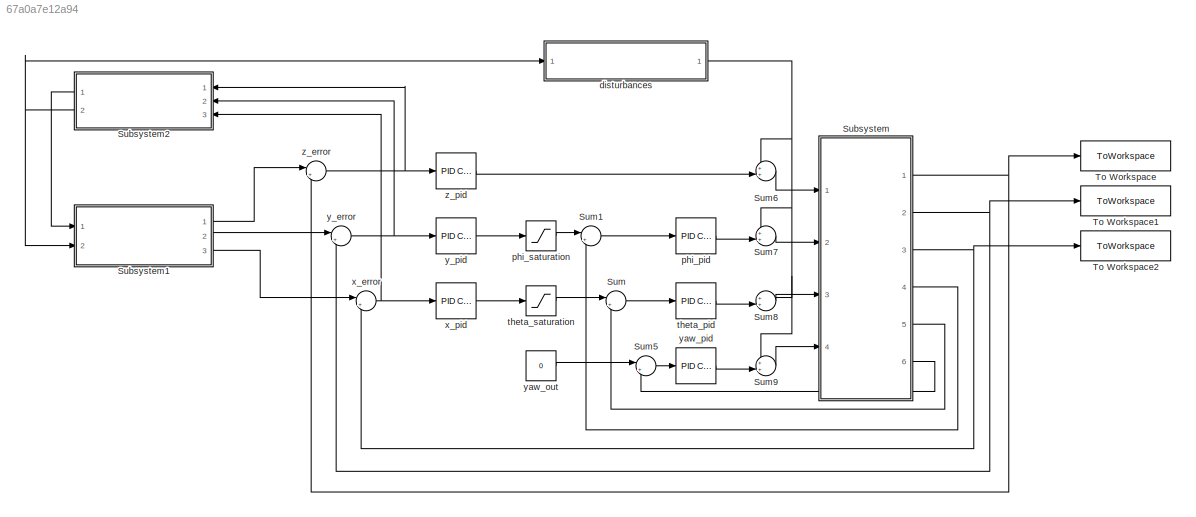
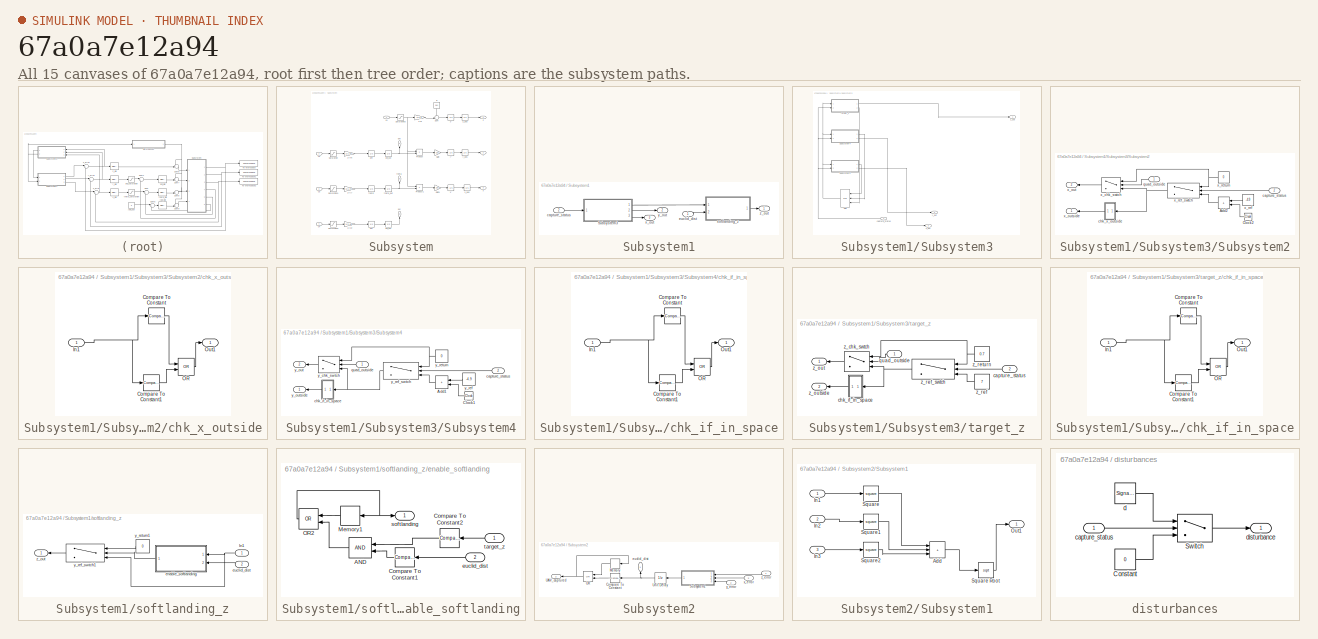
[diagram: thumbnail index - all 15 canvases of the model, root first then tree order]
MODEL slx_67a0a7e12a94
KIND model
CONFIG AbsTol = auto
CONFIG EnableMultiTasking = off
CONFIG FixedStep = auto
CONFIG MaxStep = auto
CONFIG MinStep = auto
CONFIG RelTol = 1e-3
CONFIG SampleTimeConstraint = Unconstrained
CONFIG SolverName = VariableStepAuto
CONFIG StartTime = 0.0
CONFIG StopTime = 40
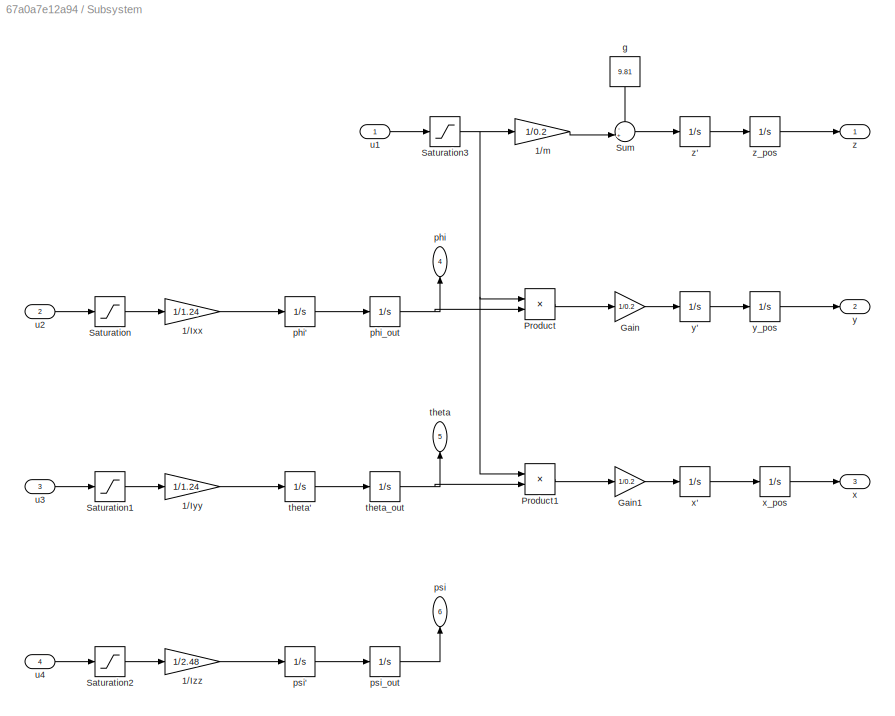
BLOCK [SubSystem] Subsystem
  Ports = [4, 6]
  RequestExecContextInheritance = off
BLOCK [Gain] Subsystem/1//Ixx
  Gain = 1/1.24
BLOCK [Gain] Subsystem/1//Iyy
  Gain = 1/1.24
BLOCK [Gain] Subsystem/1//Izz
  Gain = 1/2.48
BLOCK [Gain] Subsystem/1//m
  Gain = 1/0.2
BLOCK [Gain] Subsystem/Gain
  Gain = 1/0.2
BLOCK [Gain] Subsystem/Gain1
  Gain = 1/0.2
BLOCK [Product] Subsystem/Product
  Ports = [2, 1]
BLOCK [Product] Subsystem/Product1
  Ports = [2, 1]
BLOCK [Saturate] Subsystem/Saturation
  LowerLimit = -0.2
  UpperLimit = 0.2
BLOCK [Saturate] Subsystem/Saturation1
  LowerLimit = -0.2
  UpperLimit = 0.2
BLOCK [Saturate] Subsystem/Saturation2
  LowerLimit = -0.2
  UpperLimit = 0.2
BLOCK [Saturate] Subsystem/Saturation3
  LowerLimit = 0
  UpperLimit = 4
BLOCK [Sum] Subsystem/Sum
  Inputs = -+|
  Ports = [2, 1]
BLOCK [Constant] Subsystem/g
  NameLocation = left
  Value = 9.81
BLOCK [Outport] Subsystem/phi
  NameLocation = right
  Port = 4
BLOCK [Integrator] Subsystem/phi'
  Ports = [1, 1]
BLOCK [Integrator] Subsystem/phi_out
  Ports = [1, 1]
BLOCK [Outport] Subsystem/psi
  NameLocation = right
  Port = 6
BLOCK [Integrator] Subsystem/psi'
  Ports = [1, 1]
BLOCK [Integrator] Subsystem/psi_out
  Ports = [1, 1]
BLOCK [Outport] Subsystem/theta
  NameLocation = right
  Port = 5
BLOCK [Integrator] Subsystem/theta'
  Ports = [1, 1]
BLOCK [Integrator] Subsystem/theta_out
  Ports = [1, 1]
BLOCK [Inport] Subsystem/u1
BLOCK [Inport] Subsystem/u2
  Port = 2
BLOCK [Inport] Subsystem/u3
  Port = 3
BLOCK [Inport] Subsystem/u4
  Port = 4
BLOCK [Outport] Subsystem/x
  Port = 3
BLOCK [Integrator] Subsystem/x'
  Ports = [1, 1]
BLOCK [Integrator] Subsystem/x_pos
  Ports = [1, 1]
BLOCK [Outport] Subsystem/y
  Port = 2
BLOCK [Integrator] Subsystem/y'
  Ports = [1, 1]
BLOCK [Integrator] Subsystem/y_pos
  Ports = [1, 1]
BLOCK [Outport] Subsystem/z
BLOCK [Integrator] Subsystem/z'
  Ports = [1, 1]
BLOCK [Integrator] Subsystem/z_pos
  Ports = [1, 1]
BLOCK [SubSystem] Subsystem1
  Ports = [2, 3]
  RequestExecContextInheritance = off
BLOCK [SubSystem] Subsystem1/Subsystem3
  Ports = [1, 3]
  RequestExecContextInheritance = off
BLOCK [Logic] Subsystem1/Subsystem3/OR1
  AllPortsSameDT = off
  IconShape = distinctive
  Inputs = 3
  NameLocation = top
  Operator = OR
  OutDataTypeStr = boolean
  Ports = [3, 1]
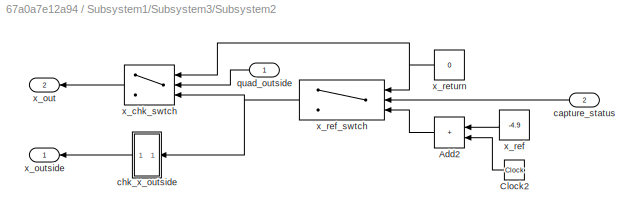
BLOCK [SubSystem] Subsystem1/Subsystem3/Subsystem2
  Ports = [2, 2]
  RequestExecContextInheritance = off
BLOCK [Sum] Subsystem1/Subsystem3/Subsystem2/Add2
  IconShape = rectangular
  Ports = [2, 1]
BLOCK [Clock] Subsystem1/Subsystem3/Subsystem2/Clock2
BLOCK [Inport] Subsystem1/Subsystem3/Subsystem2/capture_status
  Port = 2
BLOCK [SubSystem] Subsystem1/Subsystem3/Subsystem2/chk_x_outside
  Ports = [1, 1]
  RequestExecContextInheritance = off
BLOCK [Reference] Subsystem1/Subsystem3/Subsystem2/chk_x_outside/Compare To Constant  REF=simulink/Logic and Bit
Operations/Compare
To Constant
  Ports = [1, 1]
  SourceBlock = simulink/Logic and Bit\nOperations/Compare\nTo Constant
  SourceProductBaseCode = SL
  SourceType = Compare To Constant
BLOCK [Reference] Subsystem1/Subsystem3/Subsystem2/chk_x_outside/Compare To Constant1  REF=simulink/Logic and Bit
Operations/Compare
To Constant
  Ports = [1, 1]
  SourceBlock = simulink/Logic and Bit\nOperations/Compare\nTo Constant
  SourceProductBaseCode = SL
  SourceType = Compare To Constant
BLOCK [Inport] Subsystem1/Subsystem3/Subsystem2/chk_x_outside/In1
BLOCK [Logic] Subsystem1/Subsystem3/Subsystem2/chk_x_outside/OR
  AllPortsSameDT = off
  IconShape = distinctive
  Operator = OR
  OutDataTypeStr = boolean
  Ports = [2, 1]
BLOCK [Outport] Subsystem1/Subsystem3/Subsystem2/chk_x_outside/Out1
BLOCK [Inport] Subsystem1/Subsystem3/Subsystem2/quad_outside
BLOCK [Switch] Subsystem1/Subsystem3/Subsystem2/x_chk_swtch
  InputSameDT = off
  NameLocation = top
  SaturateOnIntegerOverflow = off
  Threshold = 1
BLOCK [Outport] Subsystem1/Subsystem3/Subsystem2/x_out
  Port = 2
BLOCK [Outport] Subsystem1/Subsystem3/Subsystem2/x_outside
BLOCK [Constant] Subsystem1/Subsystem3/Subsystem2/x_ref
  Value = -4.9
BLOCK [Switch] Subsystem1/Subsystem3/Subsystem2/x_ref_swtch
  Criteria = u2 > Threshold
  InputSameDT = off
  NameLocation = top
  SaturateOnIntegerOverflow = off
  Threshold = 1
BLOCK [Constant] Subsystem1/Subsystem3/Subsystem2/x_return
  NameLocation = top
  Value = 0
BLOCK [SubSystem] Subsystem1/Subsystem3/Subsystem4
  Ports = [2, 2]
  RequestExecContextInheritance = off
BLOCK [Sum] Subsystem1/Subsystem3/Subsystem4/Add1
  IconShape = rectangular
  Ports = [2, 1]
BLOCK [Clock] Subsystem1/Subsystem3/Subsystem4/Clock1
BLOCK [Inport] Subsystem1/Subsystem3/Subsystem4/capture_status
  Port = 2
BLOCK [SubSystem] Subsystem1/Subsystem3/Subsystem4/chk_if_in_space
  Ports = [1, 1]
  RequestExecContextInheritance = off
BLOCK [Reference] Subsystem1/Subsystem3/Subsystem4/chk_if_in_space/Compare To Constant  REF=simulink/Logic and Bit
Operations/Compare
To Constant
  Ports = [1, 1]
  SourceBlock = simulink/Logic and Bit\nOperations/Compare\nTo Constant
  SourceProductBaseCode = SL
  SourceType = Compare To Constant
BLOCK [Reference] Subsystem1/Subsystem3/Subsystem4/chk_if_in_space/Compare To Constant1  REF=simulink/Logic and Bit
Operations/Compare
To Constant
  Ports = [1, 1]
  SourceBlock = simulink/Logic and Bit\nOperations/Compare\nTo Constant
  SourceProductBaseCode = SL
  SourceType = Compare To Constant
BLOCK [Inport] Subsystem1/Subsystem3/Subsystem4/chk_if_in_space/In1
BLOCK [Logic] Subsystem1/Subsystem3/Subsystem4/chk_if_in_space/OR
  AllPortsSameDT = off
  IconShape = distinctive
  Operator = OR
  OutDataTypeStr = boolean
  Ports = [2, 1]
BLOCK [Outport] Subsystem1/Subsystem3/Subsystem4/chk_if_in_space/Out1
BLOCK [Inport] Subsystem1/Subsystem3/Subsystem4/quad_outside
BLOCK [Switch] Subsystem1/Subsystem3/Subsystem4/y_chk_swtch
  InputSameDT = off
  NameLocation = top
  SaturateOnIntegerOverflow = off
  Threshold = 1
BLOCK [Outport] Subsystem1/Subsystem3/Subsystem4/y_out
  Port = 2
BLOCK [Outport] Subsystem1/Subsystem3/Subsystem4/y_outside
BLOCK [Constant] Subsystem1/Subsystem3/Subsystem4/y_ref
  Value = -4.9
BLOCK [Switch] Subsystem1/Subsystem3/Subsystem4/y_ref_swtch
  Criteria = u2 > Threshold
  InputSameDT = off
  NameLocation = top
  SaturateOnIntegerOverflow = off
  Threshold = 1
BLOCK [Constant] Subsystem1/Subsystem3/Subsystem4/y_return
  NameLocation = top
  Value = 0
BLOCK [Inport] Subsystem1/Subsystem3/capture_status
BLOCK [SubSystem] Subsystem1/Subsystem3/target_z
  NameLocation = top
  Ports = [2, 2]
  RequestExecContextInheritance = off
BLOCK [Inport] Subsystem1/Subsystem3/target_z/capture_status
  Port = 2
BLOCK [SubSystem] Subsystem1/Subsystem3/target_z/chk_if_in_space
  Ports = [1, 1]
  RequestExecContextInheritance = off
BLOCK [Reference] Subsystem1/Subsystem3/target_z/chk_if_in_space/Compare To Constant  REF=simulink/Logic and Bit
Operations/Compare
To Constant
  Ports = [1, 1]
  SourceBlock = simulink/Logic and Bit\nOperations/Compare\nTo Constant
  SourceProductBaseCode = SL
  SourceType = Compare To Constant
BLOCK [Reference] Subsystem1/Subsystem3/target_z/chk_if_in_space/Compare To Constant1  REF=simulink/Logic and Bit
Operations/Compare
To Constant
  Ports = [1, 1]
  SourceBlock = simulink/Logic and Bit\nOperations/Compare\nTo Constant
  SourceProductBaseCode = SL
  SourceType = Compare To Constant
BLOCK [Inport] Subsystem1/Subsystem3/target_z/chk_if_in_space/In1
BLOCK [Logic] Subsystem1/Subsystem3/target_z/chk_if_in_space/OR
  AllPortsSameDT = off
  IconShape = distinctive
  Operator = OR
  OutDataTypeStr = boolean
  Ports = [2, 1]
BLOCK [Outport] Subsystem1/Subsystem3/target_z/chk_if_in_space/Out1
BLOCK [Inport] Subsystem1/Subsystem3/target_z/quad_outside
BLOCK [Switch] Subsystem1/Subsystem3/target_z/z_chk_swtch
  InputSameDT = off
  NameLocation = top
  SaturateOnIntegerOverflow = off
  Threshold = 1
BLOCK [Outport] Subsystem1/Subsystem3/target_z/z_out
BLOCK [Outport] Subsystem1/Subsystem3/target_z/z_outside
  Port = 2
BLOCK [Constant] Subsystem1/Subsystem3/target_z/z_ref
  Value = 7
BLOCK [Switch] Subsystem1/Subsystem3/target_z/z_ref_swtch
  Criteria = u2 > Threshold
  InputSameDT = off
  NameLocation = top
  SaturateOnIntegerOverflow = off
  Threshold = 1
BLOCK [Constant] Subsystem1/Subsystem3/target_z/z_return
  NameLocation = top
  Value = 0.7
BLOCK [Outport] Subsystem1/Subsystem3/x_out
  Port = 3
BLOCK [Outport] Subsystem1/Subsystem3/y_out
  Port = 2
BLOCK [Outport] Subsystem1/Subsystem3/z_out
BLOCK [Inport] Subsystem1/capture_status
  Port = 2
BLOCK [Inport] Subsystem1/euclid_dist
BLOCK [SubSystem] Subsystem1/softlanding_z
  Ports = [2, 1]
  RequestExecContextInheritance = off
BLOCK [Inport] Subsystem1/softlanding_z/In1
BLOCK [SubSystem] Subsystem1/softlanding_z/enable_softlanding
  Ports = [2, 1]
  RequestExecContextInheritance = off
BLOCK [Logic] Subsystem1/softlanding_z/enable_softlanding/AND
  AllPortsSameDT = off
  IconShape = distinctive
  OutDataTypeStr = boolean
  Ports = [2, 1]
BLOCK [Reference] Subsystem1/softlanding_z/enable_softlanding/Compare To Constant1  REF=simulink/Logic and Bit
Operations/Compare
To Constant
  NameLocation = top
  Ports = [1, 1]
  SourceBlock = simulink/Logic and Bit\nOperations/Compare\nTo Constant
  SourceProductBaseCode = SL
  SourceType = Compare To Constant
BLOCK [Reference] Subsystem1/softlanding_z/enable_softlanding/Compare To Constant2  REF=simulink/Logic and Bit
Operations/Compare
To Constant
  NameLocation = top
  Ports = [1, 1]
  SourceBlock = simulink/Logic and Bit\nOperations/Compare\nTo Constant
  SourceProductBaseCode = SL
  SourceType = Compare To Constant
BLOCK [Memory] Subsystem1/softlanding_z/enable_softlanding/Memory1
  NameLocation = top
BLOCK [Logic] Subsystem1/softlanding_z/enable_softlanding/OR2
  AllPortsSameDT = off
  IconShape = distinctive
  NameLocation = top
  Operator = OR
  OutDataTypeStr = boolean
  Ports = [2, 1]
BLOCK [Inport] Subsystem1/softlanding_z/enable_softlanding/euclid_dist
  Port = 2
BLOCK [Outport] Subsystem1/softlanding_z/enable_softlanding/softlanding
BLOCK [Inport] Subsystem1/softlanding_z/enable_softlanding/target_z
BLOCK [Inport] Subsystem1/softlanding_z/euclid_dist
  Port = 2
BLOCK [Switch] Subsystem1/softlanding_z/y_ref_swtch1
  Criteria = u2 > Threshold
  InputSameDT = off
  NameLocation = top
  SaturateOnIntegerOverflow = off
  Threshold = 1
BLOCK [Constant] Subsystem1/softlanding_z/y_return1
  NameLocation = top
  Value = 0
BLOCK [Outport] Subsystem1/softlanding_z/z_out
BLOCK [Outport] Subsystem1/x_out
  Port = 3
BLOCK [Outport] Subsystem1/y_out
  Port = 2
BLOCK [Outport] Subsystem1/z_out
BLOCK [SubSystem] Subsystem2
  NameLocation = top
  Ports = [3, 2]
  RequestExecContextInheritance = off
BLOCK [Reference] Subsystem2/Compare To Constant  REF=simulink/Logic and Bit
Operations/Compare
To Constant
  NameLocation = top
  Ports = [1, 1]
  SourceBlock = simulink/Logic and Bit\nOperations/Compare\nTo Constant
  SourceProductBaseCode = SL
  SourceType = Compare To Constant
BLOCK [Memory] Subsystem2/Memory
  NameLocation = top
BLOCK [Logic] Subsystem2/OR
  AllPortsSameDT = off
  IconShape = distinctive
  NameLocation = top
  Operator = OR
  OutDataTypeStr = boolean
  Ports = [2, 1]
BLOCK [SubSystem] Subsystem2/Subsystem1
  Ports = [3, 1]
  RequestExecContextInheritance = off
BLOCK [Sum] Subsystem2/Subsystem1/Add
  IconShape = rectangular
  Inputs = +++
  Ports = [3, 1]
BLOCK [Inport] Subsystem2/Subsystem1/In1
BLOCK [Inport] Subsystem2/Subsystem1/In2
  Port = 2
BLOCK [Inport] Subsystem2/Subsystem1/In3
  Port = 3
BLOCK [Outport] Subsystem2/Subsystem1/Out1
BLOCK [Math] Subsystem2/Subsystem1/Square
  Operator = square
  Ports = [1, 1]
BLOCK [Sqrt] Subsystem2/Subsystem1/Square Root
BLOCK [Math] Subsystem2/Subsystem1/Square1
  Operator = square
  Ports = [1, 1]
BLOCK [Math] Subsystem2/Subsystem1/Square2
  Operator = square
  Ports = [1, 1]
BLOCK [Outport] Subsystem2/UAV_captured
  Port = 2
BLOCK [UnitDelay] Subsystem2/Unit Delay
  HasFrameUpgradeWarning = on
  InitialCondition = 1
  NameLocation = top
  SampleTime = -1
BLOCK [Outport] Subsystem2/euclid_dist
  NameLocation = right
BLOCK [Inport] Subsystem2/x_error
  Port = 3
BLOCK [Inport] Subsystem2/y_error
  Port = 2
BLOCK [Inport] Subsystem2/z_error
BLOCK [Sum] Sum
  Inputs = |+-
  Ports = [2, 1]
BLOCK [Sum] Sum1
  Inputs = |+-
  Ports = [2, 1]
BLOCK [Sum] Sum5
  Inputs = |+-
  Ports = [2, 1]
BLOCK [Sum] Sum6
  Inputs = ++|
  NameLocation = top
  Ports = [2, 1]
BLOCK [Sum] Sum7
  Inputs = ++|
  Ports = [2, 1]
BLOCK [Sum] Sum8
  Inputs = ++|
  Ports = [2, 1]
BLOCK [Sum] Sum9
  Inputs = ++|
  Ports = [2, 1]
BLOCK [ToWorkspace] To Workspace
  FixptAsFi = on
  MaxDataPoints = inf
  Ports = [1]
  SampleTime = -1
  SaveFormat = Timeseries
  VariableName = z
BLOCK [ToWorkspace] To Workspace1
  FixptAsFi = on
  MaxDataPoints = inf
  Ports = [1]
  SampleTime = -1
  SaveFormat = Timeseries
  VariableName = y
BLOCK [ToWorkspace] To Workspace2
  FixptAsFi = on
  MaxDataPoints = inf
  Ports = [1]
  SampleTime = -1
  SaveFormat = Timeseries
  VariableName = x
BLOCK [SubSystem] disturbances
  Ports = [1, 1]
  RequestExecContextInheritance = off
BLOCK [Constant] disturbances/Constant
  Value = 0
BLOCK [Switch] disturbances/Switch
  Criteria = u2 > Threshold
  InputSameDT = off
  SaturateOnIntegerOverflow = off
BLOCK [Inport] disturbances/capture_status
BLOCK [SignalGenerator] disturbances/d
  Ports = [0, 1]
  Units = rad/sec
  WaveForm = random
BLOCK [Outport] disturbances/disturbance
BLOCK [Reference] phi_pid  REF=pid_lib/PID Controller
  Ports = [1, 1]
  SourceBlock = pid_lib/PID Controller
  SourceProductBaseCode = SL
  SourceType = PID 1dof
BLOCK [Saturate] phi_saturation
  LowerLimit = -0.05
  UpperLimit = 0.05
BLOCK [Reference] theta_pid  REF=pid_lib/PID Controller
  Ports = [1, 1]
  SourceBlock = pid_lib/PID Controller
  SourceProductBaseCode = SL
  SourceType = PID 1dof
BLOCK [Saturate] theta_saturation
  LowerLimit = -0.05
  UpperLimit = 0.05
BLOCK [Sum] x_error
  Inputs = |+-
  NameLocation = top
  Ports = [2, 1]
BLOCK [Reference] x_pid  REF=pid_lib/PID Controller
  Ports = [1, 1]
  SourceBlock = pid_lib/PID Controller
  SourceProductBaseCode = SL
  SourceType = PID 1dof
BLOCK [Sum] y_error
  Inputs = |+-
  NameLocation = top
  Ports = [2, 1]
BLOCK [Reference] y_pid  REF=pid_lib/PID Controller
  Ports = [1, 1]
  SourceBlock = pid_lib/PID Controller
  SourceProductBaseCode = SL
  SourceType = PID 1dof
BLOCK [Constant] yaw_out
  Value = 0
BLOCK [Reference] yaw_pid  REF=pid_lib/PID Controller
  Ports = [1, 1]
  SourceBlock = pid_lib/PID Controller
  SourceProductBaseCode = SL
  SourceType = PID 1dof
BLOCK [Sum] z_error
  Inputs = |+-
  NameLocation = top
  Ports = [2, 1]
BLOCK [Reference] z_pid  REF=pid_lib/PID Controller
  Ports = [1, 1]
  SourceBlock = pid_lib/PID Controller
  SourceProductBaseCode = SL
  SourceType = PID 1dof
LINE Subsystem/1//Ixx:1 -> Subsystem/phi':1
LINE Subsystem/1//Iyy:1 -> Subsystem/theta':1
LINE Subsystem/1//Izz:1 -> Subsystem/psi':1
LINE Subsystem/1//m:1 -> Subsystem/Sum:2
LINE Subsystem/Gain1:1 -> Subsystem/x':1
LINE Subsystem/Gain:1 -> Subsystem/y':1
LINE Subsystem/Product1:1 -> Subsystem/Gain1:1
LINE Subsystem/Product:1 -> Subsystem/Gain:1
LINE Subsystem/Saturation1:1 -> Subsystem/1//Iyy:1
LINE Subsystem/Saturation2:1 -> Subsystem/1//Izz:1
NET Subsystem/Saturation3:1 -> Subsystem/1//m:1, Subsystem/Product1:1, Subsystem/Product:1
LINE Subsystem/Saturation:1 -> Subsystem/1//Ixx:1
LINE Subsystem/Sum:1 -> Subsystem/z':1
LINE Subsystem/g:1 -> Subsystem/Sum:1
LINE Subsystem/phi':1 -> Subsystem/phi_out:1
NET Subsystem/phi_out:1 -> Subsystem/Product:2, Subsystem/phi:1
LINE Subsystem/psi':1 -> Subsystem/psi_out:1
LINE Subsystem/psi_out:1 -> Subsystem/psi:1
LINE Subsystem/theta':1 -> Subsystem/theta_out:1
NET Subsystem/theta_out:1 -> Subsystem/Product1:2, Subsystem/theta:1
LINE Subsystem/u1:1 -> Subsystem/Saturation3:1
LINE Subsystem/u2:1 -> Subsystem/Saturation:1
LINE Subsystem/u3:1 -> Subsystem/Saturation1:1
LINE Subsystem/u4:1 -> Subsystem/Saturation2:1
LINE Subsystem/x':1 -> Subsystem/x_pos:1
LINE Subsystem/x_pos:1 -> Subsystem/x:1
LINE Subsystem/y':1 -> Subsystem/y_pos:1
LINE Subsystem/y_pos:1 -> Subsystem/y:1
LINE Subsystem/z':1 -> Subsystem/z_pos:1
LINE Subsystem/z_pos:1 -> Subsystem/z:1
NET Subsystem1/Subsystem3/OR1:1 -> Subsystem1/Subsystem3/Subsystem2:1, Subsystem1/Subsystem3/Subsystem4:1, Subsystem1/Subsystem3/target_z:1
LINE Subsystem1/Subsystem3/Subsystem2/Add2:1 -> Subsystem1/Subsystem3/Subsystem2/x_ref_swtch:3
LINE Subsystem1/Subsystem3/Subsystem2/Clock2:1 -> Subsystem1/Subsystem3/Subsystem2/Add2:2
LINE Subsystem1/Subsystem3/Subsystem2/capture_status:1 -> Subsystem1/Subsystem3/Subsystem2/x_ref_swtch:2
LINE Subsystem1/Subsystem3/Subsystem2/chk_x_outside/Compare To Constant1:1 -> Subsystem1/Subsystem3/Subsystem2/chk_x_outside/OR:2
LINE Subsystem1/Subsystem3/Subsystem2/chk_x_outside/Compare To Constant:1 -> Subsystem1/Subsystem3/Subsystem2/chk_x_outside/OR:1
NET Subsystem1/Subsystem3/Subsystem2/chk_x_outside/In1:1 -> Subsystem1/Subsystem3/Subsystem2/chk_x_outside/Compare To Constant1:1, Subsystem1/Subsystem3/Subsystem2/chk_x_outside/Compare To Constant:1
LINE Subsystem1/Subsystem3/Subsystem2/chk_x_outside/OR:1 -> Subsystem1/Subsystem3/Subsystem2/chk_x_outside/Out1:1
LINE Subsystem1/Subsystem3/Subsystem2/chk_x_outside:1 -> Subsystem1/Subsystem3/Subsystem2/x_outside:1
LINE Subsystem1/Subsystem3/Subsystem2/quad_outside:1 -> Subsystem1/Subsystem3/Subsystem2/x_chk_swtch:2
LINE Subsystem1/Subsystem3/Subsystem2/x_chk_swtch:1 -> Subsystem1/Subsystem3/Subsystem2/x_out:1
LINE Subsystem1/Subsystem3/Subsystem2/x_ref:1 -> Subsystem1/Subsystem3/Subsystem2/Add2:1
NET Subsystem1/Subsystem3/Subsystem2/x_ref_swtch:1 -> Subsystem1/Subsystem3/Subsystem2/chk_x_outside:1, Subsystem1/Subsystem3/Subsystem2/x_chk_swtch:3
NET Subsystem1/Subsystem3/Subsystem2/x_return:1 -> Subsystem1/Subsystem3/Subsystem2/x_chk_swtch:1, Subsystem1/Subsystem3/Subsystem2/x_ref_swtch:1
LINE Subsystem1/Subsystem3/Subsystem2:1 -> Subsystem1/Subsystem3/OR1:1
LINE Subsystem1/Subsystem3/Subsystem2:2 -> Subsystem1/Subsystem3/x_out:1
LINE Subsystem1/Subsystem3/Subsystem4/Add1:1 -> Subsystem1/Subsystem3/Subsystem4/y_ref_swtch:3
LINE Subsystem1/Subsystem3/Subsystem4/Clock1:1 -> Subsystem1/Subsystem3/Subsystem4/Add1:2
LINE Subsystem1/Subsystem3/Subsystem4/capture_status:1 -> Subsystem1/Subsystem3/Subsystem4/y_ref_swtch:2
LINE Subsystem1/Subsystem3/Subsystem4/chk_if_in_space/Compare To Constant1:1 -> Subsystem1/Subsystem3/Subsystem4/chk_if_in_space/OR:2
LINE Subsystem1/Subsystem3/Subsystem4/chk_if_in_space/Compare To Constant:1 -> Subsystem1/Subsystem3/Subsystem4/chk_if_in_space/OR:1
NET Subsystem1/Subsystem3/Subsystem4/chk_if_in_space/In1:1 -> Subsystem1/Subsystem3/Subsystem4/chk_if_in_space/Compare To Constant1:1, Subsystem1/Subsystem3/Subsystem4/chk_if_in_space/Compare To Constant:1
LINE Subsystem1/Subsystem3/Subsystem4/chk_if_in_space/OR:1 -> Subsystem1/Subsystem3/Subsystem4/chk_if_in_space/Out1:1
LINE Subsystem1/Subsystem3/Subsystem4/chk_if_in_space:1 -> Subsystem1/Subsystem3/Subsystem4/y_outside:1
LINE Subsystem1/Subsystem3/Subsystem4/quad_outside:1 -> Subsystem1/Subsystem3/Subsystem4/y_chk_swtch:2
LINE Subsystem1/Subsystem3/Subsystem4/y_chk_swtch:1 -> Subsystem1/Subsystem3/Subsystem4/y_out:1
LINE Subsystem1/Subsystem3/Subsystem4/y_ref:1 -> Subsystem1/Subsystem3/Subsystem4/Add1:1
NET Subsystem1/Subsystem3/Subsystem4/y_ref_swtch:1 -> Subsystem1/Subsystem3/Subsystem4/chk_if_in_space:1, Subsystem1/Subsystem3/Subsystem4/y_chk_swtch:3
NET Subsystem1/Subsystem3/Subsystem4/y_return:1 -> Subsystem1/Subsystem3/Subsystem4/y_chk_swtch:1, Subsystem1/Subsystem3/Subsystem4/y_ref_swtch:1
LINE Subsystem1/Subsystem3/Subsystem4:1 -> Subsystem1/Subsystem3/OR1:2
LINE Subsystem1/Subsystem3/Subsystem4:2 -> Subsystem1/Subsystem3/y_out:1
NET Subsystem1/Subsystem3/capture_status:1 -> Subsystem1/Subsystem3/Subsystem2:2, Subsystem1/Subsystem3/Subsystem4:2, Subsystem1/Subsystem3/target_z:2
LINE Subsystem1/Subsystem3/target_z/capture_status:1 -> Subsystem1/Subsystem3/target_z/z_ref_swtch:2
LINE Subsystem1/Subsystem3/target_z/chk_if_in_space/Compare To Constant1:1 -> Subsystem1/Subsystem3/target_z/chk_if_in_space/OR:2
LINE Subsystem1/Subsystem3/target_z/chk_if_in_space/Compare To Constant:1 -> Subsystem1/Subsystem3/target_z/chk_if_in_space/OR:1
NET Subsystem1/Subsystem3/target_z/chk_if_in_space/In1:1 -> Subsystem1/Subsystem3/target_z/chk_if_in_space/Compare To Constant1:1, Subsystem1/Subsystem3/target_z/chk_if_in_space/Compare To Constant:1
LINE Subsystem1/Subsystem3/target_z/chk_if_in_space/OR:1 -> Subsystem1/Subsystem3/target_z/chk_if_in_space/Out1:1
LINE Subsystem1/Subsystem3/target_z/chk_if_in_space:1 -> Subsystem1/Subsystem3/target_z/z_outside:1
LINE Subsystem1/Subsystem3/target_z/quad_outside:1 -> Subsystem1/Subsystem3/target_z/z_chk_swtch:2
LINE Subsystem1/Subsystem3/target_z/z_chk_swtch:1 -> Subsystem1/Subsystem3/target_z/z_out:1
LINE Subsystem1/Subsystem3/target_z/z_ref:1 -> Subsystem1/Subsystem3/target_z/z_ref_swtch:3
NET Subsystem1/Subsystem3/target_z/z_ref_swtch:1 -> Subsystem1/Subsystem3/target_z/chk_if_in_space:1, Subsystem1/Subsystem3/target_z/z_chk_swtch:3
NET Subsystem1/Subsystem3/target_z/z_return:1 -> Subsystem1/Subsystem3/target_z/z_chk_swtch:1, Subsystem1/Subsystem3/target_z/z_ref_swtch:1
LINE Subsystem1/Subsystem3/target_z:1 -> Subsystem1/Subsystem3/z_out:1
LINE Subsystem1/Subsystem3/target_z:2 -> Subsystem1/Subsystem3/OR1:3
LINE Subsystem1/Subsystem3:1 -> Subsystem1/softlanding_z:1
LINE Subsystem1/Subsystem3:2 -> Subsystem1/y_out:1
LINE Subsystem1/Subsystem3:3 -> Subsystem1/x_out:1
LINE Subsystem1/capture_status:1 -> Subsystem1/Subsystem3:1
LINE Subsystem1/euclid_dist:1 -> Subsystem1/softlanding_z:2
NET Subsystem1/softlanding_z/In1:1 -> Subsystem1/softlanding_z/enable_softlanding:1, Subsystem1/softlanding_z/y_ref_swtch1:3
LINE Subsystem1/softlanding_z/enable_softlanding/AND:1 -> Subsystem1/softlanding_z/enable_softlanding/OR2:2
LINE Subsystem1/softlanding_z/enable_softlanding/Compare To Constant1:1 -> Subsystem1/softlanding_z/enable_softlanding/AND:2
LINE Subsystem1/softlanding_z/enable_softlanding/Compare To Constant2:1 -> Subsystem1/softlanding_z/enable_softlanding/AND:1
LINE Subsystem1/softlanding_z/enable_softlanding/Memory1:1 -> Subsystem1/softlanding_z/enable_softlanding/OR2:1
NET Subsystem1/softlanding_z/enable_softlanding/OR2:1 -> Subsystem1/softlanding_z/enable_softlanding/Memory1:1, Subsystem1/softlanding_z/enable_softlanding/softlanding:1
LINE Subsystem1/softlanding_z/enable_softlanding/euclid_dist:1 -> Subsystem1/softlanding_z/enable_softlanding/Compare To Constant1:1
LINE Subsystem1/softlanding_z/enable_softlanding/target_z:1 -> Subsystem1/softlanding_z/enable_softlanding/Compare To Constant2:1
LINE Subsystem1/softlanding_z/enable_softlanding:1 -> Subsystem1/softlanding_z/y_ref_swtch1:2
LINE Subsystem1/softlanding_z/euclid_dist:1 -> Subsystem1/softlanding_z/enable_softlanding:2
LINE Subsystem1/softlanding_z/y_ref_swtch1:1 -> Subsystem1/softlanding_z/z_out:1
LINE Subsystem1/softlanding_z/y_return1:1 -> Subsystem1/softlanding_z/y_ref_swtch1:1
LINE Subsystem1/softlanding_z:1 -> Subsystem1/z_out:1
LINE Subsystem1:1 -> z_error:1
LINE Subsystem1:2 -> y_error:1
LINE Subsystem1:3 -> x_error:1
LINE Subsystem2/Compare To Constant:1 -> Subsystem2/OR:2
LINE Subsystem2/Memory:1 -> Subsystem2/OR:1
NET Subsystem2/OR:1 -> Subsystem2/Memory:1, Subsystem2/UAV_captured:1
LINE Subsystem2/Subsystem1/Add:1 -> Subsystem2/Subsystem1/Square Root:1
LINE Subsystem2/Subsystem1/In1:1 -> Subsystem2/Subsystem1/Square:1
LINE Subsystem2/Subsystem1/In2:1 -> Subsystem2/Subsystem1/Square1:1
LINE Subsystem2/Subsystem1/In3:1 -> Subsystem2/Subsystem1/Square2:1
LINE Subsystem2/Subsystem1/Square Root:1 -> Subsystem2/Subsystem1/Out1:1
LINE Subsystem2/Subsystem1/Square1:1 -> Subsystem2/Subsystem1/Add:2
LINE Subsystem2/Subsystem1/Square2:1 -> Subsystem2/Subsystem1/Add:3
LINE Subsystem2/Subsystem1/Square:1 -> Subsystem2/Subsystem1/Add:1
LINE Subsystem2/Subsystem1:1 -> Subsystem2/Unit Delay:1
NET Subsystem2/Unit Delay:1 -> Subsystem2/Compare To Constant:1, Subsystem2/euclid_dist:1
LINE Subsystem2/x_error:1 -> Subsystem2/Subsystem1:2
LINE Subsystem2/y_error:1 -> Subsystem2/Subsystem1:3
LINE Subsystem2/z_error:1 -> Subsystem2/Subsystem1:1
LINE Subsystem2:1 -> Subsystem1:1
NET Subsystem2:2 -> Subsystem1:2, disturbances:1
NET Subsystem:1 -> To Workspace:1, z_error:2
NET Subsystem:2 -> To Workspace1:1, y_error:2
NET Subsystem:3 -> To Workspace2:1, x_error:2
LINE Subsystem:4 -> Sum1:2
LINE Subsystem:5 -> Sum:2
LINE Subsystem:6 -> Sum5:2
LINE Sum1:1 -> phi_pid:1
LINE Sum5:1 -> yaw_pid:1
LINE Sum6:1 -> Subsystem:1
LINE Sum7:1 -> Subsystem:2
LINE Sum8:1 -> Subsystem:3
LINE Sum9:1 -> Subsystem:4
LINE Sum:1 -> theta_pid:1
LINE disturbances/Constant:1 -> disturbances/Switch:3
LINE disturbances/Switch:1 -> disturbances/disturbance:1
LINE disturbances/capture_status:1 -> disturbances/Switch:2
LINE disturbances/d:1 -> disturbances/Switch:1
NET disturbances:1 -> Sum6:1, Sum7:1, Sum8:1, Sum9:1
LINE phi_pid:1 -> Sum7:2
LINE phi_saturation:1 -> Sum1:1
LINE theta_pid:1 -> Sum8:2
LINE theta_saturation:1 -> Sum:1
NET x_error:1 -> Subsystem2:3, x_pid:1
LINE x_pid:1 -> theta_saturation:1
NET y_error:1 -> Subsystem2:2, y_pid:1
LINE y_pid:1 -> phi_saturation:1
LINE yaw_out:1 -> Sum5:1
LINE yaw_pid:1 -> Sum9:2
NET z_error:1 -> Subsystem2:1, z_pid:1
LINE z_pid:1 -> Sum6:2
note: NET lines group one-source signal fan-out (src -> all destinations, sorted); 1:1 wires keep LINE
